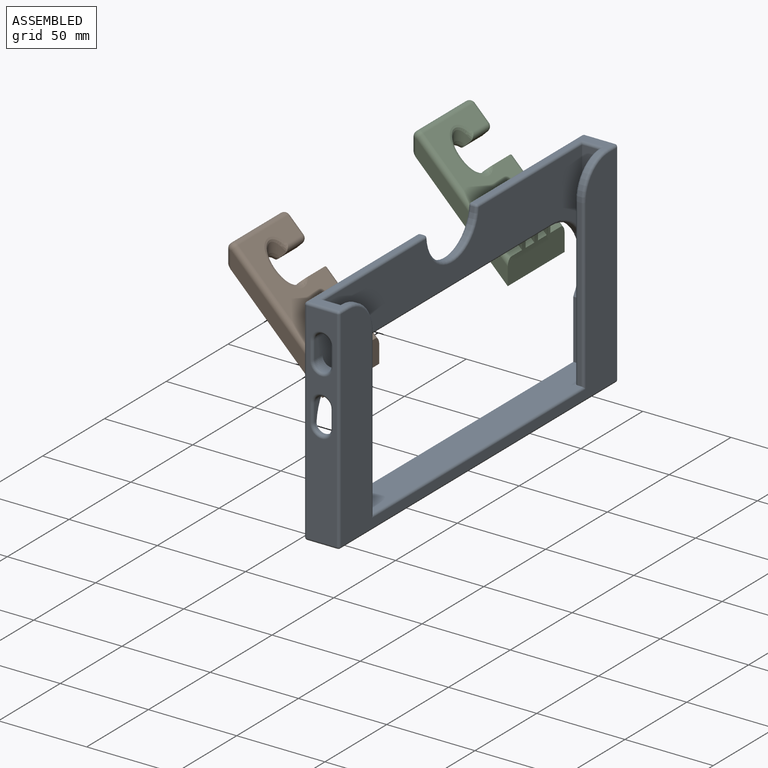
[diagram: assembled view]
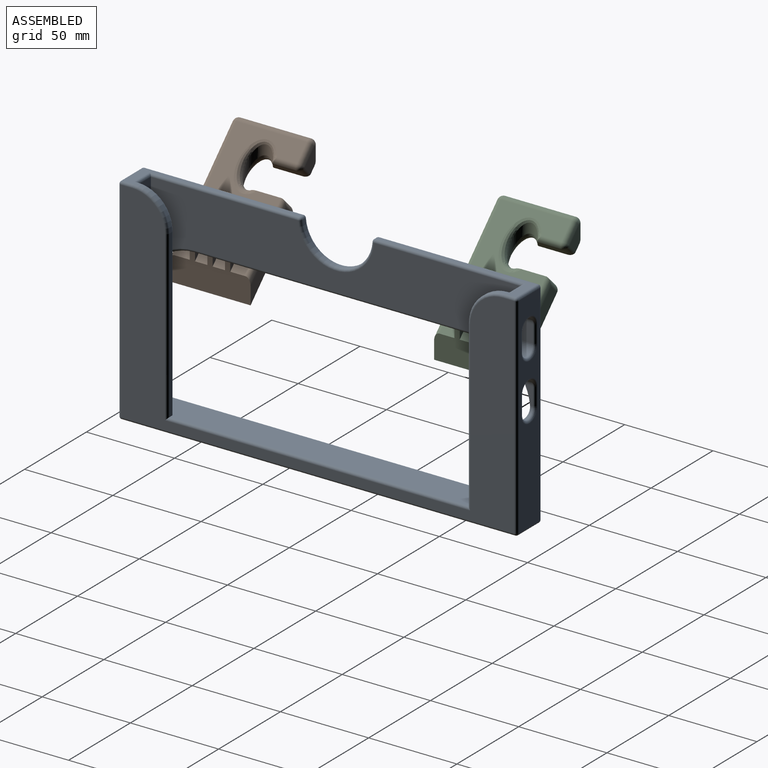
[diagram: assembled view, second angle]
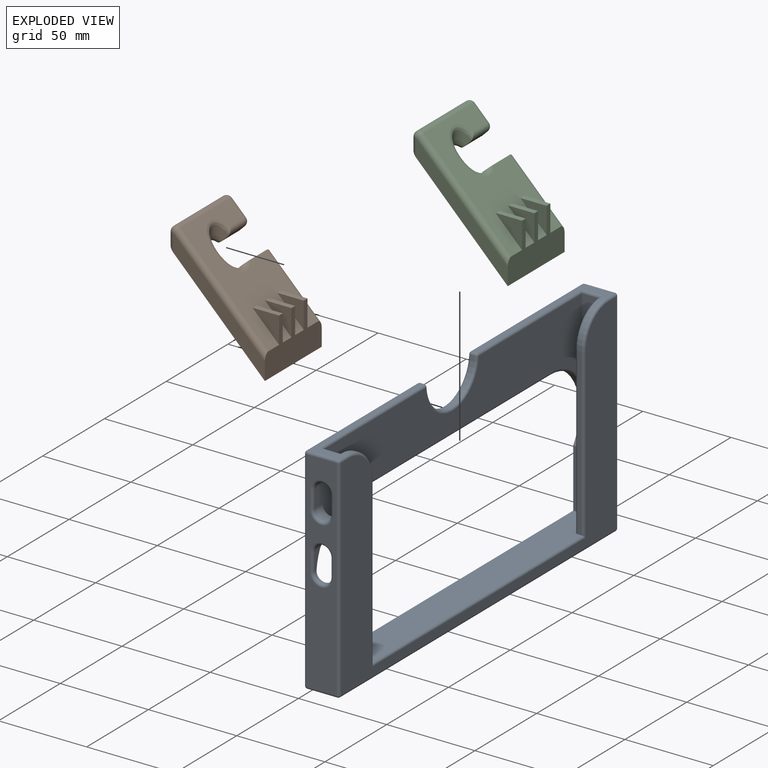
[diagram: exploded view]
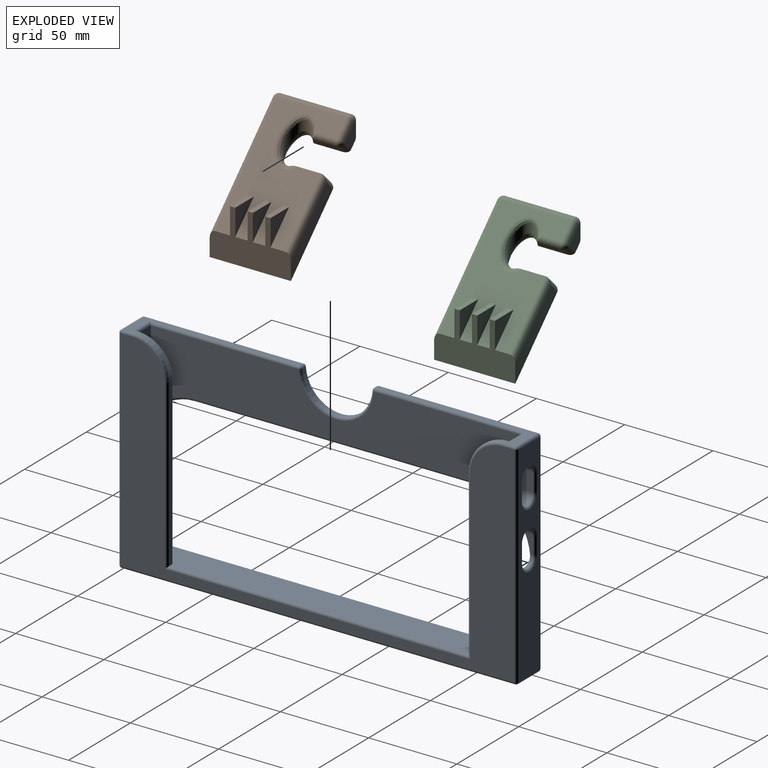
[diagram: exploded view, second angle]
ASSEMBLY  parts=3 mates=2
PART A: 101 faces, bbox 226x20x123.6 mm
  f0: cylinder r=30mm len=46.58mm, axis (0,-1,0), area 447.6mm2, adj f4,f12,f13,f17,f26,f34,f35,f36
  f1: cylinder r=30mm len=3.58mm, axis (0,-1,0), area 2mm2, adj f4,f26,f36
  f2: cylinder r=30mm len=3.58mm, axis (0,-1,0), area 2mm2, adj f5,f20,f31
  f3: cylinder r=30mm len=46.58mm, axis (0,-1,0), area 447.5mm2, adj f5,f12,f15,f17,f20,f31,f32,f33
  f4: plane 18.42x11.5mm, normal (-1,0,0), area 139mm2, adj f0,f1,f6,f26,f29,f36,f100
  f5: plane 18.42x11.5mm, normal (1,0,0), area 139mm2, adj f2,f3,f6,f20,f27,f31,f98
  f6: plane 223x43.34mm, normal (0,-1,0), area 6164.6mm2, adj f4,f5,f18,f19,f27,f28,f29,f30
  f7: plane 90.05x17mm, normal (0,0,1), area 258.1mm2, adj f24,f56,f58,f60,f66,f67,f69,f74
  f8: plane 119x17mm, normal (-1,0,0), area 1497.5mm2, adj f37,f38,f39,f40,f49,f50,f51,f52
  f9: plane 223x17mm, normal (0,0,-1), area 3791mm2, adj f77,f78,f87,f88
  f10: plane 119x17mm, normal (1,0,0), area 1497.5mm2, adj f41,f42,f43,f44,f45,f46,f47,f48
  f11: plane 90.05x17mm, normal (0,0,1), area 258.1mm2, adj f21,f59,f61,f64,f75,f85,f93,f97
  f12: plane 160x3.5mm, normal (0,0,-1), area 560mm2, adj f0,f3,f17,f99
  f13: plane 33.42x15mm, normal (-1,0,0), area 501.3mm2, adj f0,f14,f17,f26
  f14: plane 210x18.5mm, normal (0,0,1), area 3746mm2, adj f13,f15,f17,f20,f22,f23,f26,f53
  f15: plane 33.42x15mm, normal (1,0,0), area 501.3mm2, adj f3,f14,f17,f20
  f16: cylinder r=20mm len=39.9mm, axis (0,-1,0), area 120.1mm2, adj f65,f66,f75,f76
  f17: plane 223x119mm, normal (0,1,0), area 9049.1mm2, adj f0,f3,f12,f13,f14,f15,f67,f68
  f18: plane 17.5x10mm, normal (-1,0,0), area 135.7mm2, adj f6,f26,f30,f61
  f19: plane 17.5x10mm, normal (1,0,0), area 135.7mm2, adj f6,f20,f28,f58
  f20: plane 112.5x25mm, normal (0,1,0), area 2212.8mm2, adj f2,f3,f5,f14,f15,f19,f27,f28
  f21: cylinder r=20mm len=20mm, axis (0,1,0), area 62.8mm2, adj f11,f22,f57,f95
  f22: plane 94x2mm, normal (-1,0,0), area 188mm2, adj f14,f21,f55,f92
  f23: plane 94x2mm, normal (1,0,0), area 188mm2, adj f14,f24,f53,f84
  f24: cylinder r=20mm len=20mm, axis (0,1,0), area 62.8mm2, adj f7,f23,f54,f80
  f25: plane 223x119mm, normal (0,-1,0), area 6668.1mm2, adj f74,f79,f80,f84,f88,f89,f92,f94
  f26: plane 112.5x25mm, normal (0,1,0), area 2212.8mm2, adj f0,f1,f4,f13,f14,f18,f29,f30
  f27: cylinder r=5mm len=10mm, axis (-1,0,0), area 102.1mm2, adj f5,f6,f20,f50
  f28: cylinder r=5mm len=10mm, axis (-1,0,0), area 102.1mm2, adj f6,f19,f20,f51
  f29: cylinder r=5mm len=10mm, axis (-1,0,0), area 102.1mm2, adj f4,f6,f26,f46
  f30: cylinder r=5mm len=10mm, axis (-1,0,0), area 102.1mm2, adj f6,f18,f26,f47
  f31: cylinder r=5mm len=10mm, axis (1,0,0), area 94mm2, adj f2,f3,f5,f20,f32,f39
  f32: plane 10x4.46mm, normal (0,-1,0), area 27.4mm2, adj f3,f31,f33,f40
  f33: cylinder r=5mm len=10mm, axis (1,0,0), area 24.2mm2, adj f3,f20,f32,f38
  f34: plane 10x4.46mm, normal (0,-1,0), area 27.4mm2, adj f0,f35,f36,f44
  f35: cylinder r=5mm len=10mm, axis (1,0,0), area 24.2mm2, adj f0,f26,f34,f42
  f36: cylinder r=5mm len=10mm, axis (1,0,0), area 94mm2, adj f0,f1,f4,f26,f34,f43
  f37: cylinder r=1.5mm len=10mm, axis (0,0,1), area 23.6mm2, adj f8,f20,f38,f39
  f38: torus R=6.5mm, axis (1,0,0), area 41mm2, adj f8,f33,f37,f40
  f39: torus R=6.5mm, axis (1,0,0), area 41mm2, adj f8,f31,f37,f40
  f40: cylinder r=1.5mm len=10mm, axis (0,0,1), area 23.6mm2, adj f8,f32,f38,f39
  f41: cylinder r=1.5mm len=10mm, axis (0,0,1), area 23.6mm2, adj f10,f26,f42,f43
  f42: torus R=6.5mm, axis (-1,0,0), area 41mm2, adj f10,f35,f41,f44
  f43: torus R=6.5mm, axis (-1,0,0), area 41mm2, adj f10,f36,f41,f44
  f44: cylinder r=1.5mm len=10mm, axis (0,0,1), area 23.6mm2, adj f10,f34,f42,f43
  f45: cylinder r=1.5mm len=10mm, axis (0,0,1), area 23.6mm2, adj f10,f26,f46,f47
  f46: torus R=6.5mm, axis (-1,0,0), area 41mm2, adj f10,f29,f45,f48
  f47: torus R=6.5mm, axis (-1,0,0), area 41mm2, adj f10,f30,f45,f48
  f48: cylinder r=1.5mm len=10mm, axis (0,0,-1), area 23.6mm2, adj f6,f10,f46,f47
  f49: cylinder r=1.5mm len=10mm, axis (0,0,1), area 23.6mm2, adj f8,f20,f50,f51
  f50: torus R=6.5mm, axis (1,0,0), area 41mm2, adj f8,f27,f49,f52
  f51: torus R=6.5mm, axis (1,0,0), area 41mm2, adj f8,f28,f49,f52
  f52: cylinder r=1.5mm len=10mm, axis (0,0,-1), area 23.6mm2, adj f6,f8,f50,f51
  f53: cylinder r=1.5mm len=94mm, axis (0,0,1), area 221.5mm2, adj f14,f20,f23,f54
  f54: torus R=18.5mm, axis (0,-1,0), area 72mm2, adj f20,f24,f53,f56
  f55: cylinder r=1.5mm len=94mm, axis (0,0,-1), area 221.5mm2, adj f14,f22,f26,f57
  f56: cylinder r=1.5mm len=1.5mm, axis (1,0,0), area 1.3mm2, adj f7,f54,f58
  f57: torus R=18.5mm, axis (0,-1,0), area 72mm2, adj f21,f26,f55,f59
  f58: cylinder r=1.5mm len=13mm, axis (0,-1,0), area 26.1mm2, adj f7,f19,f56,f60
  f59: cylinder r=1.5mm len=1.5mm, axis (-1,0,0), area 1.3mm2, adj f11,f57,f61
  f60: cylinder r=1.5mm len=85.05mm, axis (-1,0,0), area 198.1mm2, adj f6,f7,f58,f62
  f61: cylinder r=1.5mm len=13mm, axis (0,1,0), area 26.1mm2, adj f11,f18,f59,f64
  f62: sphere r=1.5mm, area 3.4mm2, adj f60,f65,f66
  f63: sphere r=1.5mm, area 3.5mm2, adj f67,f68,f69
  f64: cylinder r=1.5mm len=85.05mm, axis (-1,0,0), area 198.1mm2, adj f6,f11,f61,f70
  f65: torus R=21.5mm, axis (0,-1,0), area 145.3mm2, adj f6,f16,f62,f70
  f66: cylinder r=1.5mm len=2mm, axis (0,-1,0), area 4.5mm2, adj f7,f16,f62,f71
  f67: cylinder r=1.5mm len=90.05mm, axis (1,0,0), area 212.2mm2, adj f7,f17,f63,f71
  f68: cylinder r=1.5mm len=119mm, axis (0,0,1), area 280.4mm2, adj f8,f17,f63,f72
  f69: cylinder r=1.5mm len=17mm, axis (0,-1,0), area 40.1mm2, adj f7,f8,f63,f73
  f70: sphere r=1.5mm, area 3.4mm2, adj f64,f65,f75
  f71: sphere r=1.5mm, area 3.4mm2, adj f66,f67,f76
  f72: sphere r=1.5mm, area 3.5mm2, adj f68,f77,f78
  f73: sphere r=1.5mm, area 3.5mm2, adj f69,f74,f79
  f74: cylinder r=1.5mm len=6.5mm, axis (-1,0,0), area 15.3mm2, adj f7,f25,f73,f80
  f75: cylinder r=1.5mm len=2mm, axis (0,-1,0), area 4.5mm2, adj f11,f16,f70,f81
  f76: torus R=21.5mm, axis (0,-1,0), area 145.3mm2, adj f16,f17,f71,f81
  f77: cylinder r=1.5mm len=223mm, axis (-1,0,0), area 525.4mm2, adj f9,f17,f72,f82
  f78: cylinder r=1.5mm len=17mm, axis (0,-1,0), area 40.1mm2, adj f8,f9,f72,f83
  f79: cylinder r=1.5mm len=119mm, axis (0,0,-1), area 280.4mm2, adj f8,f25,f73,f83
  f80: torus R=18.5mm, axis (0,-1,0), area 72mm2, adj f24,f25,f74,f84
  f81: sphere r=1.5mm, area 3.4mm2, adj f75,f76,f85
  f82: sphere r=1.5mm, area 3.5mm2, adj f77,f86,f87
  f83: sphere r=1.5mm, area 3.5mm2, adj f78,f79,f88
  f84: cylinder r=1.5mm len=95.5mm, axis (0,0,-1), area 222.8mm2, adj f23,f25,f80,f89
  f85: cylinder r=1.5mm len=90.05mm, axis (1,0,0), area 212.2mm2, adj f11,f17,f81,f90
  f86: cylinder r=1.5mm len=119mm, axis (0,0,-1), area 280.4mm2, adj f10,f17,f82,f90
  f87: cylinder r=1.5mm len=17mm, axis (0,-1,0), area 40.1mm2, adj f9,f10,f82,f91
  f88: cylinder r=1.5mm len=223mm, axis (1,0,0), area 525.4mm2, adj f9,f25,f83,f91
  f89: cylinder r=1.5mm len=173mm, axis (-1,0,0), area 403.1mm2, adj f14,f25,f84,f92
  f90: sphere r=1.5mm, area 3.5mm2, adj f85,f86,f93
  f91: sphere r=1.5mm, area 3.5mm2, adj f87,f88,f94
  f92: cylinder r=1.5mm len=95.5mm, axis (0,0,1), area 222.8mm2, adj f22,f25,f89,f95
  f93: cylinder r=1.5mm len=17mm, axis (0,-1,0), area 40.1mm2, adj f10,f11,f90,f96
  f94: cylinder r=1.5mm len=119mm, axis (0,0,1), area 280.4mm2, adj f10,f25,f91,f96
  f95: torus R=18.5mm, axis (0,-1,0), area 72mm2, adj f21,f25,f92,f97
  f96: sphere r=1.5mm, area 3.5mm2, adj f93,f94,f97
  f97: cylinder r=1.5mm len=6.5mm, axis (-1,0,0), area 15.3mm2, adj f11,f25,f95,f96
  f98: torus R=31.5mm, axis (0,-1,0), area 69mm2, adj f3,f5,f6,f99
  f99: cylinder r=1.5mm len=160mm, axis (1,0,0), area 377mm2, adj f6,f12,f98,f100
  f100: torus R=31.5mm, axis (0,-1,0), area 69mm2, adj f0,f4,f6,f99
PART B: 35 faces, bbox 58.2x47.3x66 mm
  f0: plane 49.7x49.7mm, normal (0.71,0,0.71), area 1981mm2, adj f3,f9,f10,f13,f15,f17,f18,f25
  f1: plane 38.89x33.94mm, normal (0,1,0), area 311.5mm2, adj f3,f4,f24,f25
  f2: plane 40x6.9mm, normal (-1,0,0), area 276mm2, adj f4,f11,f13,f14
  f3: plane 47.26x30.4mm, normal (1,0,0), area 780.1mm2, adj f0,f1,f4,f6,f10,f25,f26,f27
  f4: plane 56.08x56.08mm, normal (-0.71,0,-0.71), area 2821.9mm2, adj f1,f2,f3,f5,f6,f11,f14,f21
  f5: plane 12.93x7.98mm, normal (0,1,0), area 54.5mm2, adj f4,f14,f18,f20
  f6: plane 61.72x51.82mm, normal (0,-1,0), area 513mm2, adj f3,f4,f10,f11
  f7: cylinder r=7mm len=25.77mm, axis (0,0,-1), area 193.6mm2, adj f8,f9,f15,f17,f22,f23
  f8: plane 15.39x2.96mm, normal (0.71,0,-0.71), area 58mm2, adj f7,f17,f20,f21,f22
  f9: plane 18.79x5.14mm, normal (-0.71,0,0.71), area 119.6mm2, adj f0,f7,f15,f23,f24
  f10: cylinder r=3mm len=53.94mm, axis (0.71,0,-0.71), area 338.3mm2, adj f0,f3,f6,f12
  f11: cylinder r=3mm len=9.9mm, axis (0,0,1), area 39.6mm2, adj f2,f4,f6,f12
  f12: sphere r=3mm, area 21.2mm2, adj f10,f11,f13
  f13: cylinder r=3mm len=40mm, axis (0,1,0), area 282.7mm2, adj f0,f2,f12,f16
  f14: cylinder r=3mm len=9.9mm, axis (0,0,-1), area 39.6mm2, adj f2,f4,f5,f16
  f15: bspline ~22.11x19.99mm, area 207.8mm2, adj f0,f7,f9,f17
  f16: sphere r=3mm, area 23mm2, adj f13,f14,f18
  f17: cylinder r=3mm len=13.63mm, axis (0,1,0), area 59.3mm2, adj f0,f7,f8,f15,f19
  f18: cylinder r=3mm len=10.1mm, axis (0.71,0,-0.71), area 53.2mm2, adj f0,f5,f16,f19
  f19: sphere r=3mm, area 10.5mm2, adj f17,f18,f20
  f20: cylinder r=3mm len=7.07mm, axis (-0.71,0,-0.71), area 25.9mm2, adj f5,f8,f19,f21
  f21: cylinder r=3mm len=18.26mm, axis (0,-1,0), area 75.6mm2, adj f4,f8,f20,f22
  f22: bspline ~22.11x19.99mm, area 215.6mm2, adj f4,f7,f8,f21,f23
  f23: cylinder r=3mm len=17.98mm, axis (0,1,0), area 72.6mm2, adj f4,f7,f9,f22,f24
  f24: cylinder r=3mm len=9.19mm, axis (-0.71,0,-0.71), area 33mm2, adj f1,f9,f23,f25
  f25: cylinder r=3mm len=33.23mm, axis (0.71,0,-0.71), area 193.2mm2, adj f0,f1,f3,f24
  f26: plane 15x15mm, normal (0,1,0), area 112.5mm2, adj f0,f3,f28
  f27: plane 15x15mm, normal (0,-1,0), area 112.5mm2, adj f0,f3,f28
  f28: plane 15x3mm, normal (0,0,1), area 45mm2, adj f0,f3,f26,f27
  f29: plane 15x15mm, normal (0,1,0), area 112.5mm2, adj f0,f3,f31
  f30: plane 15x15mm, normal (0,-1,0), area 112.5mm2, adj f0,f3,f31
  f31: plane 15x3mm, normal (0,0,1), area 45mm2, adj f0,f3,f29,f30
  f32: plane 15x15mm, normal (0,1,0), area 112.5mm2, adj f0,f3,f34
  f33: plane 15x15mm, normal (0,-1,0), area 112.5mm2, adj f0,f3,f34
  f34: plane 15x3mm, normal (0,0,1), area 45mm2, adj f0,f3,f32,f33
PART C: same geometry as B
PLACE A rot(axis=(0,0,1),90deg) t=(56.07,-97.15,85.75)mm
PLACE B t=(-3.75,-59.15,92.64)mm
PLACE C t=(-3.75,90.85,92.64)mm
MATE fastened A.f17 <-> B.f3  axis (-1,0,0) through (51.07,-59.15,30.75)mm
MATE fastened A.f17 <-> C.f3  axis (-1,0,0) through (51.07,90.85,30.75)mm
